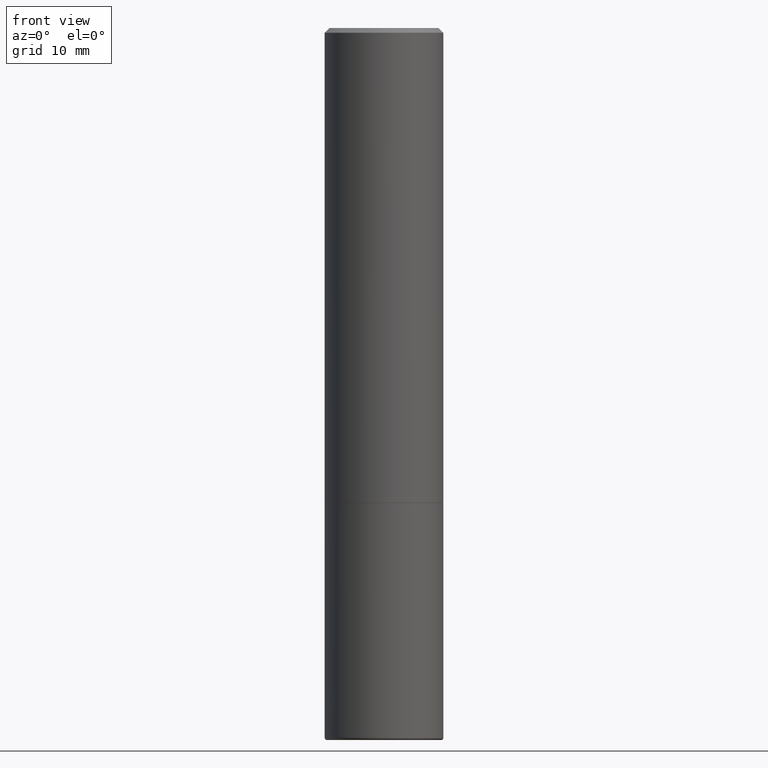
[diagram: clean part render]
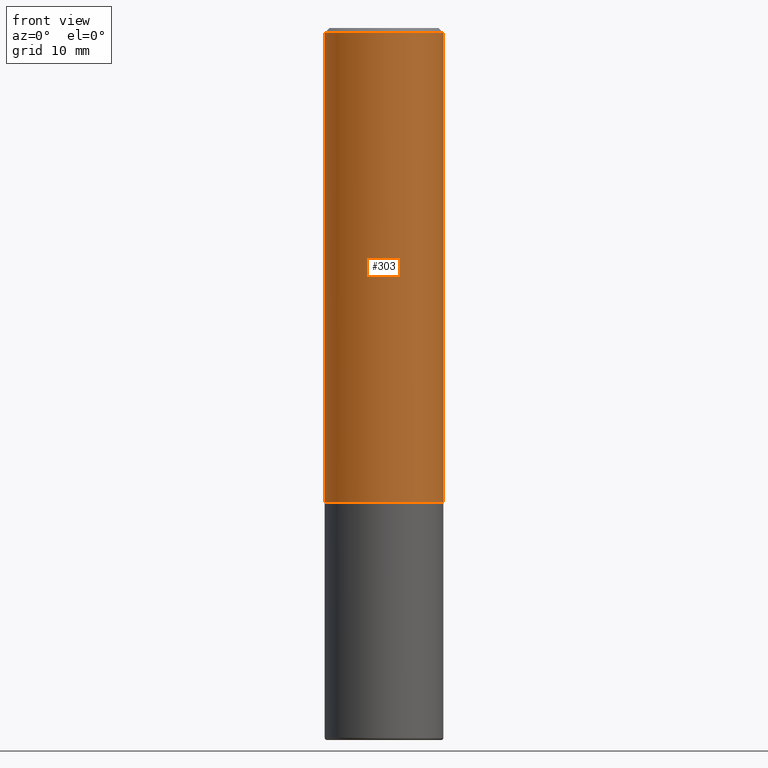
[diagram: same view with one face highlighted and labeled with its STEP entity id]
A machine part, front view. The second image highlights one B-rep face of the part: STEP entity #303.
In plain terms, the highlighted cylindrical surface (partial cylindrical patch) has radius 6.35 mm, axis along (-0, 0, 1).
Its self-contained STEP definition (entity closure, byte-faithful):
#3 = FACE_OUTER_BOUND ( 'NONE', #365, .T. ) ;
#8 = AXIS2_PLACEMENT_3D ( 'NONE', #138, #262, #204 ) ;
#35 = DIRECTION ( 'NONE',  ( 1.000000000000000000, -6.982962677686267499E-15, 4.876176775795936353E-29 ) ) ;
#39 = LINE ( 'NONE', #110, #203 ) ;
#67 = DIRECTION ( 'NONE',  ( 1.000000000000000000, -6.982962677686268288E-15, 0.000000000000000000 ) ) ;
#75 = CARTESIAN_POINT ( 'NONE',  ( 0.000000000000000000, 0.000000000000000000, 0.000000000000000000 ) ) ;
#78 = VERTEX_POINT ( 'NONE', #382 ) ;
#83 = ORIENTED_EDGE ( 'NONE', *, *, #349, .F. ) ;
#110 = CARTESIAN_POINT ( 'NONE',  ( -0.2500000000000001110, 1.776356839400251254E-15, -1.229733772563727146E-29 ) ) ;
#114 = AXIS2_PLACEMENT_3D ( 'NONE', #75, #235, #35 ) ;
#128 = LINE ( 'NONE', #131, #395 ) ;
#131 = CARTESIAN_POINT ( 'NONE',  ( 0.2500000000000001110, -1.745740669421567664E-15, 1.219044193948984649E-29 ) ) ;
#137 = CARTESIAN_POINT ( 'NONE',  ( -0.2500000000000002220, -1.748293572161901516E-15, -1.999000000000000110 ) ) ;
#138 = CARTESIAN_POINT ( 'NONE',  ( 4.890937612370287172E-31, -6.982962677686310098E-17, -0.02000000000000005593 ) ) ;
#140 = CARTESIAN_POINT ( 'NONE',  ( 4.888492143564088712E-29, -6.979471196347448158E-15, -1.999000000000000110 ) ) ;
#141 = VERTEX_POINT ( 'NONE', #137 ) ;
#147 = EDGE_CURVE ( 'NONE', #333, #78, #128, .T. ) ;
#194 = AXIS2_PLACEMENT_3D ( 'NONE', #140, #357, #67 ) ;
#199 = CIRCLE ( 'NONE', #194, 0.2500000000000002220 ) ;
#203 = VECTOR ( 'NONE', #358, 39.37007874015748143 ) ;
#204 = DIRECTION ( 'NONE',  ( 1.000000000000000000, -6.982962677686266711E-15, 0.000000000000000000 ) ) ;
#235 = DIRECTION ( 'NONE',  ( -2.445468806185136597E-29, 3.491481338843145583E-15, 1.000000000000000000 ) ) ;
#252 = CIRCLE ( 'NONE', #8, 0.2500000000000000000 ) ;
#261 = CARTESIAN_POINT ( 'NONE',  ( 0.2500000000000002220, -8.725211865769017202E-15, -1.999000000000000110 ) ) ;
#262 = DIRECTION ( 'NONE',  ( -2.445468806185136597E-29, 3.491481338843145583E-15, 1.000000000000000000 ) ) ;
#272 = ORIENTED_EDGE ( 'NONE', *, *, #147, .T. ) ;
#275 = ORIENTED_EDGE ( 'NONE', *, *, #286, .T. ) ;
#286 = EDGE_CURVE ( 'NONE', #141, #333, #199, .T. ) ;
#303 = ADVANCED_FACE ( 'NONE', ( #3 ), #363, .T. ) ;
#321 = DIRECTION ( 'NONE',  ( -2.445468806185136877E-29, 3.491481338843145188E-15, 1.000000000000000000 ) ) ;
#333 = VERTEX_POINT ( 'NONE', #261 ) ;
#335 = CARTESIAN_POINT ( 'NONE',  ( -0.2500000000000000000, 1.675911042644703577E-15, -0.02000000000000005593 ) ) ;
#345 = VERTEX_POINT ( 'NONE', #335 ) ;
#349 = EDGE_CURVE ( 'NONE', #141, #345, #39, .T. ) ;
#357 = DIRECTION ( 'NONE',  ( -2.445468806185136597E-29, 3.491481338843145583E-15, 1.000000000000000000 ) ) ;
#358 = DIRECTION ( 'NONE',  ( -2.445468806185136877E-29, 3.491481338843145188E-15, 1.000000000000000000 ) ) ;
#363 = CYLINDRICAL_SURFACE ( 'NONE', #114, 0.2500000000000001110 ) ;
#364 = EDGE_CURVE ( 'NONE', #345, #78, #252, .T. ) ;
#365 = EDGE_LOOP ( 'NONE', ( #83, #275, #272, #407 ) ) ;
#382 = CARTESIAN_POINT ( 'NONE',  ( 0.2500000000000000000, -1.784954126219746189E-15, -0.02000000000000005593 ) ) ;
#395 = VECTOR ( 'NONE', #321, 39.37007874015748143 ) ;
#407 = ORIENTED_EDGE ( 'NONE', *, *, #364, .F. ) ;